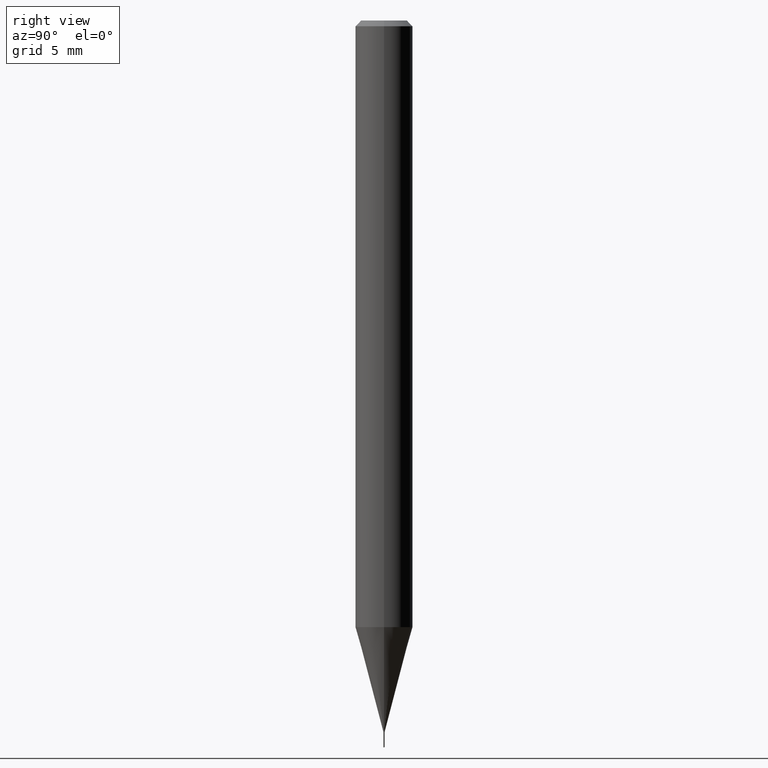
[diagram: clean part render]
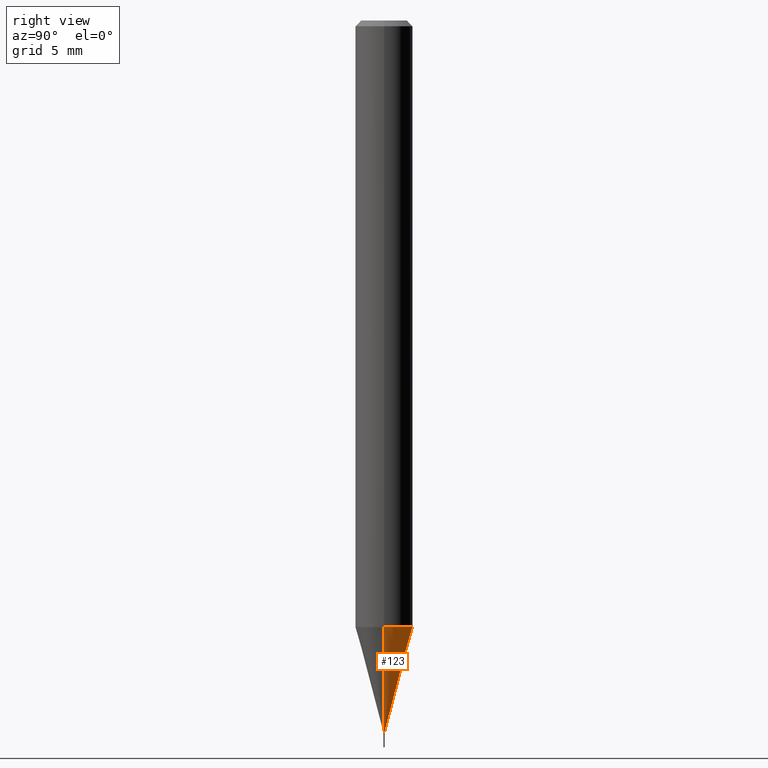
[diagram: same view with one face highlighted and labeled with its STEP entity id]
A machine part, right view. The second image highlights one B-rep face of the part: STEP entity #123.
In plain terms, the highlighted conical surface has half-angle 15 deg.
Its self-contained STEP definition (entity closure, byte-faithful):
#5 = CARTESIAN_POINT ( 'NONE',  ( 3.580655426016277013E-29, -5.112226976334133788E-15, -1.464199999999999946 ) ) ;
#7 = CIRCLE ( 'NONE', #338, 0.001199999999999999895 ) ;
#11 = DIRECTION ( 'NONE',  ( -2.445468806185136597E-29, 3.491481338843145583E-15, 1.000000000000000000 ) ) ;
#26 = ORIENTED_EDGE ( 'NONE', *, *, #269, .T. ) ;
#44 = CARTESIAN_POINT ( 'NONE',  ( 0.001199999999999999895, -5.120606531547357794E-15, -1.464199999999999946 ) ) ;
#47 = LINE ( 'NONE', #315, #219 ) ;
#53 = CARTESIAN_POINT ( 'NONE',  ( 0.001199999999999999895, -5.120606531547357794E-15, -1.464199999999999946 ) ) ;
#92 = DIRECTION ( 'NONE',  ( -2.445468806185136597E-29, 3.491481338843145583E-15, 1.000000000000000000 ) ) ;
#98 = VERTEX_POINT ( 'NONE', #169 ) ;
#114 = CONICAL_SURFACE ( 'NONE', #396, 0.001199999999999999895, 0.2617993877991571794 ) ;
#118 = VERTEX_POINT ( 'NONE', #468 ) ;
#123 = ADVANCED_FACE ( 'NONE', ( #205 ), #114, .T. ) ;
#126 = LINE ( 'NONE', #44, #440 ) ;
#157 = DIRECTION ( 'NONE',  ( 0.2588190451025281780, 1.565188264969567536E-15, 0.9659258262890662028 ) ) ;
#169 = CARTESIAN_POINT ( 'NONE',  ( -0.001199999999999999895, -5.103525889438070980E-15, -1.464199999999999946 ) ) ;
#196 = DIRECTION ( 'NONE',  ( 1.000000000000000000, -6.982962677686262766E-15, 0.000000000000000000 ) ) ;
#200 = CARTESIAN_POINT ( 'NONE',  ( 3.052680815776794134E-29, -4.358419160682700425E-15, -1.248300860782146415 ) ) ;
#205 = FACE_OUTER_BOUND ( 'NONE', #435, .T. ) ;
#212 = ORIENTED_EDGE ( 'NONE', *, *, #376, .F. ) ;
#219 = VECTOR ( 'NONE', #357, 39.37007874015748854 ) ;
#269 = EDGE_CURVE ( 'NONE', #98, #118, #47, .T. ) ;
#276 = CARTESIAN_POINT ( 'NONE',  ( 0.05905000000000015098, -4.770763106800076134E-15, -1.248300860782146415 ) ) ;
#281 = DIRECTION ( 'NONE',  ( 1.000000000000000000, -6.982962677686657197E-15, 0.000000000000000000 ) ) ;
#292 = CARTESIAN_POINT ( 'NONE',  ( 3.580655426016277013E-29, -5.112226976334133788E-15, -1.464199999999999946 ) ) ;
#315 = CARTESIAN_POINT ( 'NONE',  ( -0.001199999999999999895, -5.103700463505012736E-15, -1.464199999999999946 ) ) ;
#335 = VERTEX_POINT ( 'NONE', #276 ) ;
#338 = AXIS2_PLACEMENT_3D ( 'NONE', #5, #11, #281 ) ;
#350 = EDGE_CURVE ( 'NONE', #445, #335, #126, .T. ) ;
#357 = DIRECTION ( 'NONE',  ( -0.2588190451025281780, 5.211531920934592063E-15, 0.9659258262890662028 ) ) ;
#364 = DIRECTION ( 'NONE',  ( 1.000000000000000000, -6.982962677686657197E-15, 0.000000000000000000 ) ) ;
#366 = AXIS2_PLACEMENT_3D ( 'NONE', #200, #389, #196 ) ;
#374 = ORIENTED_EDGE ( 'NONE', *, *, #380, .T. ) ;
#376 = EDGE_CURVE ( 'NONE', #335, #118, #423, .T. ) ;
#380 = EDGE_CURVE ( 'NONE', #445, #98, #7, .T. ) ;
#389 = DIRECTION ( 'NONE',  ( -2.445468806185136597E-29, 3.491481338843145583E-15, 1.000000000000000000 ) ) ;
#396 = AXIS2_PLACEMENT_3D ( 'NONE', #292, #92, #364 ) ;
#423 = CIRCLE ( 'NONE', #366, 0.05905000000000015098 ) ;
#435 = EDGE_LOOP ( 'NONE', ( #374, #26, #212, #476 ) ) ;
#440 = VECTOR ( 'NONE', #157, 39.37007874015748854 ) ;
#445 = VERTEX_POINT ( 'NONE', #53 ) ;
#468 = CARTESIAN_POINT ( 'NONE',  ( -0.05905000000000015098, -3.938843675216360143E-15, -1.248300860782146415 ) ) ;
#476 = ORIENTED_EDGE ( 'NONE', *, *, #350, .F. ) ;